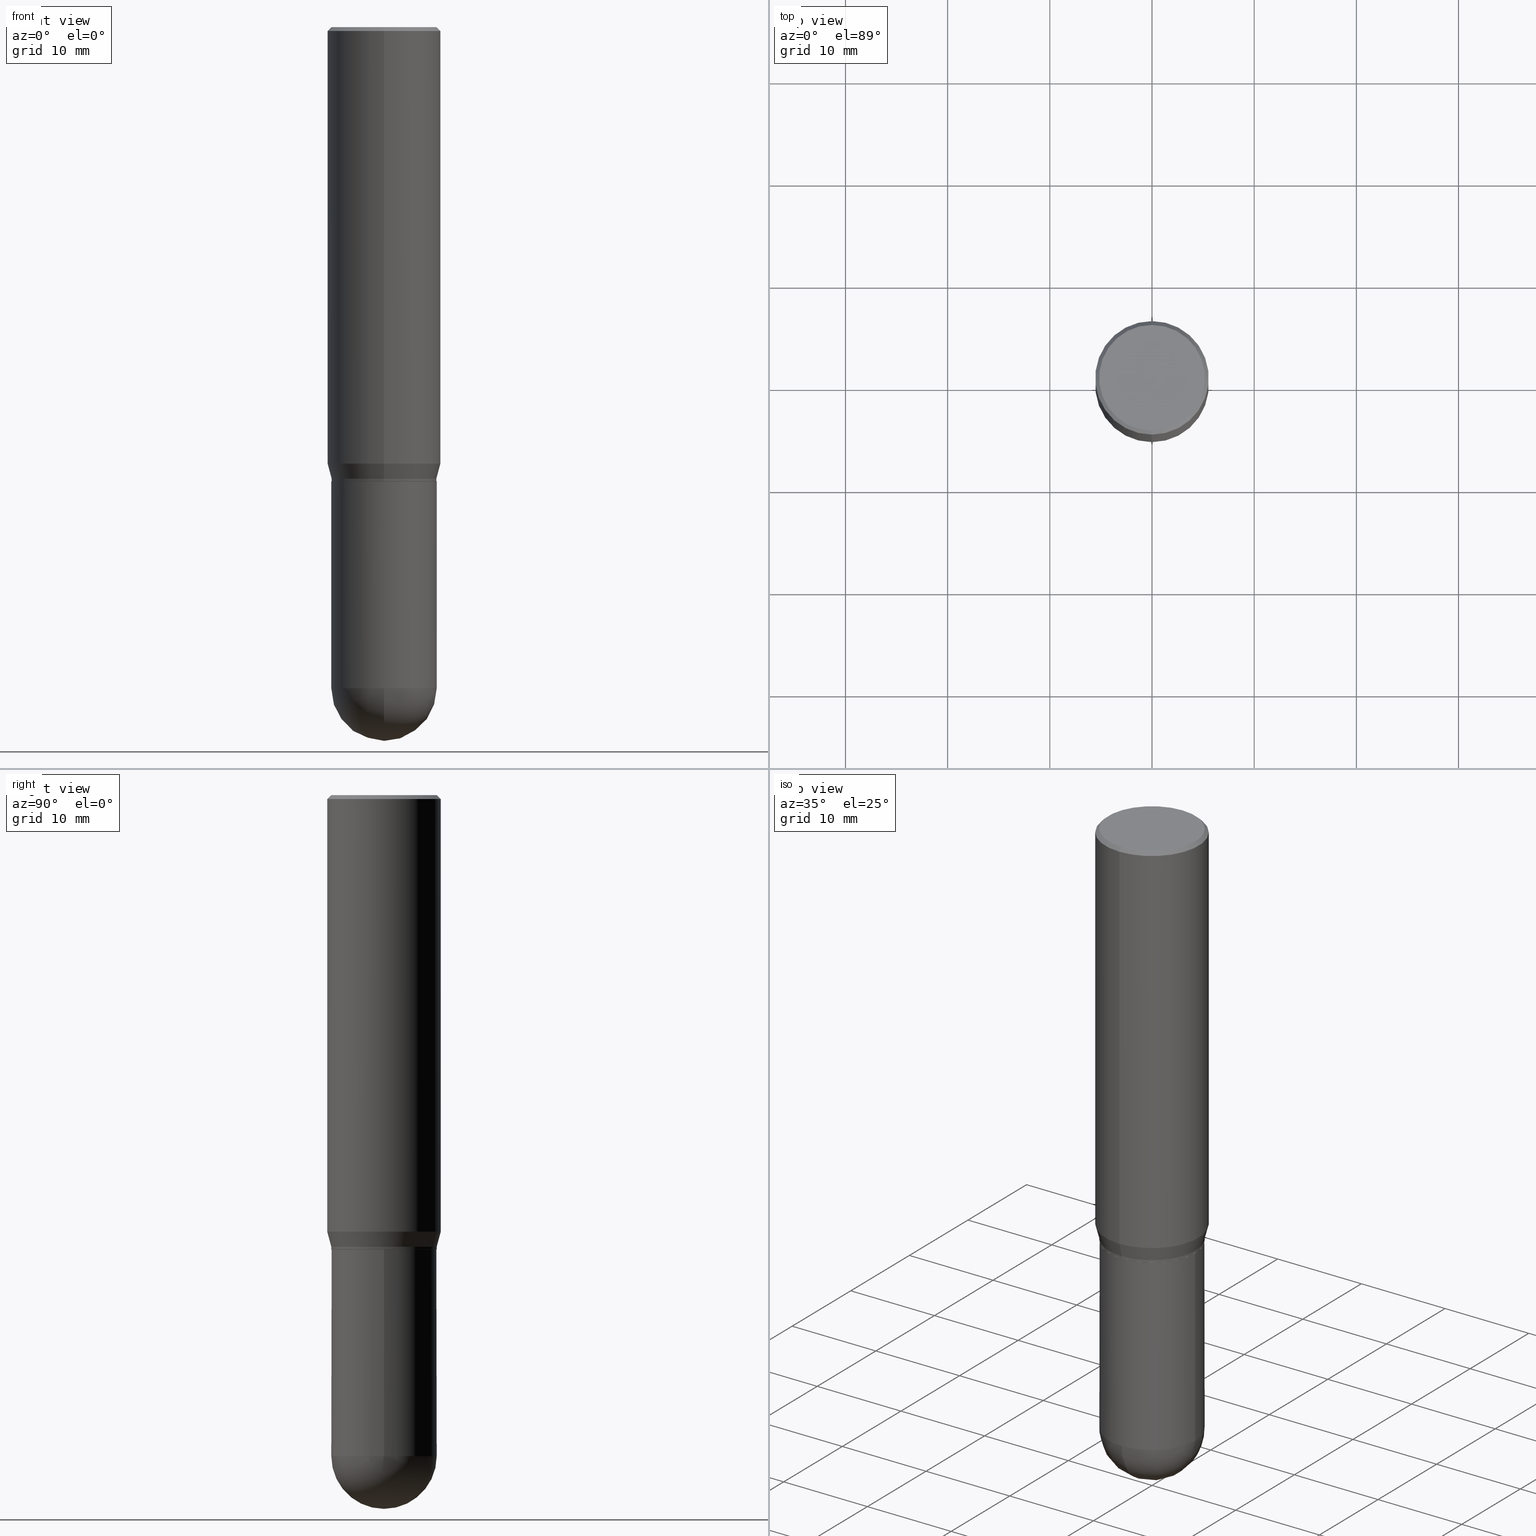
[diagram: canonical four-view strip — front | top / right | iso, engineering-drawing reading convention]
A machine part, canonical four-view strip (front | top / right | iso — engineering-drawing reading convention). The complete STEP part file that produces these views, byte-faithful:
ISO-10303-21;
HEADER;
FILE_DESCRIPTION (( 'STEP AP203' ),
    '1' );
FILE_NAME ('30496.STEP',
    '2024-03-08T15:27:33',
    ( '' ),
    ( '' ),
    'SwSTEP 2.0',
    'SolidWorks 2023',
    '' );
FILE_SCHEMA (( 'CONFIG_CONTROL_DESIGN' ));
ENDSEC;

DATA;
#1 = AXIS2_PLACEMENT_3D ( 'NONE', #465, #270, #302 ) ;
#2 = DATE_AND_TIME ( #236, #352 ) ;
#3 = CARTESIAN_POINT ( 'NONE',  ( -1.527523085743870054E-15, -0.2187500000000000555, -0.01499999999999934892 ) ) ;
#4 = LINE ( 'NONE', #163, #512 ) ;
#5 = FACE_OUTER_BOUND ( 'NONE', #337, .T. ) ;
#6 = CIRCLE ( 'NONE', #76, 0.2031000000000000583 ) ;
#7 = AXIS2_PLACEMENT_3D ( 'NONE', #382, #28, #419 ) ;
#8 = DIRECTION ( 'NONE',  ( 1.000000000000000000, -6.982962677686262766E-15, 0.000000000000000000 ) ) ;
#9 = DIRECTION ( 'NONE',  ( -1.000000000000000000, 7.105427357601001070E-15, -4.926315508542082329E-29 ) ) ;
#10 = EDGE_CURVE ( 'NONE', #110, #345, #64, .T. ) ;
#11 = ORIENTED_EDGE ( 'NONE', *, *, #233, .T. ) ;
#12 = CARTESIAN_POINT ( 'NONE',  ( 1.498712265402032742E-15, 0.2030999999999938688, -1.740000000000000879 ) ) ;
#13 = ORIENTED_EDGE ( 'NONE', *, *, #233, .F. ) ;
#14 = EDGE_CURVE ( 'NONE', #19, #290, #239, .T. ) ;
#15 = AXIS2_PLACEMENT_3D ( 'NONE', #164, #430, #86 ) ;
#16 = LOCAL_TIME ( 10, 27, 33.00000000000000000, #351 ) ;
#17 = LINE ( 'NONE', #60, #87 ) ;
#18 = AXIS2_PLACEMENT_3D ( 'NONE', #216, #94, #489 ) ;
#19 = VERTEX_POINT ( 'NONE', #385 ) ;
#20 = DIRECTION ( 'NONE',  ( 4.937700262164548831E-15, 0.7071067811865452413, -0.7071067811865497932 ) ) ;
#21 = ORIENTED_EDGE ( 'NONE', *, *, #22, .T. ) ;
#22 = EDGE_CURVE ( 'NONE', #95, #147, #75, .T. ) ;
#23 = DIRECTION ( 'NONE',  ( -2.445428866101404443E-29, 3.491538535316298316E-15, 1.000000000000000000 ) ) ;
#24 = ORIENTED_EDGE ( 'NONE', *, *, #272, .T. ) ;
#25 = DIRECTION ( 'NONE',  ( -1.000000000000000000, 6.982962677686265922E-15, -4.876176775795935793E-29 ) ) ;
#26 = VERTEX_POINT ( 'NONE', #509 ) ;
#27 = AXIS2_PLACEMENT_3D ( 'NONE', #70, #31, #72 ) ;
#28 = DIRECTION ( 'NONE',  ( -2.445428866101404443E-29, 3.491538535316298316E-15, 1.000000000000000000 ) ) ;
#29 = VERTEX_POINT ( 'NONE', #159 ) ;
#30 = EDGE_CURVE ( 'NONE', #341, #95, #400, .T. ) ;
#31 = DIRECTION ( 'NONE',  ( 2.445428866101404443E-29, -3.491538535316297921E-15, -1.000000000000000000 ) ) ;
#32 = ORIENTED_EDGE ( 'NONE', *, *, #148, .F. ) ;
#33 = CARTESIAN_POINT ( 'NONE',  ( 6.210996075139691695E-29, -8.917326398390289827E-15, -2.546899999999999942 ) ) ;
#34 = ORIENTED_EDGE ( 'NONE', *, *, #78, .F. ) ;
#35 = CONICAL_SURFACE ( 'NONE', #359, 0.2030999999999999472, 0.2617993877991502960 ) ;
#36 = ORGANIZATION ( 'UNSPECIFIED', 'UNSPECIFIED', '' ) ;
#37 = EDGE_LOOP ( 'NONE', ( #34, #21, #107, #114 ) ) ;
#38 = COORDINATED_UNIVERSAL_TIME_OFFSET ( 5, 0, .BEHIND. ) ;
#39 = DIRECTION ( 'NONE',  ( 2.445428866101404443E-29, -3.491538535316298316E-15, -1.000000000000000000 ) ) ;
#40 = APPROVAL_STATUS ( 'not_yet_approved' ) ;
#41 = DIRECTION ( 'NONE',  ( -6.982962677686266711E-15, -1.000000000000000000, 3.491538535316298710E-15 ) ) ;
#42 = AXIS2_PLACEMENT_3D ( 'NONE', #353, #277, #243 ) ;
#43 = AXIS2_PLACEMENT_3D ( 'NONE', #149, #299, #456 ) ;
#44 = DIRECTION ( 'NONE',  ( -2.445428866101404443E-29, 3.491538535316298316E-15, 1.000000000000000000 ) ) ;
#45 = EDGE_CURVE ( 'NONE', #491, #29, #367, .T. ) ;
#46 = CALENDAR_DATE ( 2024, 8, 3 ) ;
#47 = LINE ( 'NONE', #313, #425 ) ;
#48 = DIRECTION ( 'NONE',  ( 6.982962677686265133E-15, 1.000000000000000000, -3.492862791899308071E-15 ) ) ;
#49 = VECTOR ( 'NONE', #140, 39.37007874015748143 ) ;
#50 = CIRCLE ( 'NONE', #18, 0.2031000000000000028 ) ;
#51 = ADVANCED_FACE ( 'NONE', ( #315 ), #212, .T. ) ;
#52 = FACE_OUTER_BOUND ( 'NONE', #61, .T. ) ;
#53 = ORIENTED_EDGE ( 'NONE', *, *, #131, .T. ) ;
#54 = CARTESIAN_POINT ( 'NONE',  ( 6.210996075139691695E-29, -8.917326398390289827E-15, -2.546899999999999942 ) ) ;
#55 = ORIENTED_EDGE ( 'NONE', *, *, #508, .T. ) ;
#56 = DIRECTION ( 'NONE',  ( 6.982962677686266711E-15, 1.000000000000000000, -2.690150658458162309E-15 ) ) ;
#57 = EDGE_LOOP ( 'NONE', ( #13, #260, #417, #188 ) ) ;
#58 = AXIS2_PLACEMENT_3D ( 'NONE', #321, #480, #119 ) ;
#59 = AXIS2_PLACEMENT_3D ( 'NONE', #62, #362, #331 ) ;
#60 = CARTESIAN_POINT ( 'NONE',  ( 1.527523085743871040E-15, 0.2187499999999999167, -0.01500000000000087721 ) ) ;
#61 = EDGE_LOOP ( 'NONE', ( #500, #328, #189, #71 ) ) ;
#62 = CARTESIAN_POINT ( 'NONE',  ( 4.112217053294172949E-29, -5.871348173807832947E-15, -1.681593404861547070 ) ) ;
#63 = CYLINDRICAL_SURFACE ( 'NONE', #7, 0.2187500000000000000 ) ;
#64 = LINE ( 'NONE', #154, #295 ) ;
#65 = EDGE_CURVE ( 'NONE', #503, #26, #161, .T. ) ;
#66 = DIRECTION ( 'NONE',  ( 1.000000000000000000, -6.982962677686266711E-15, 4.876176775795935793E-29 ) ) ;
#67 = VECTOR ( 'NONE', #127, 39.37007874015748143 ) ;
#68 = ORIENTED_EDGE ( 'NONE', *, *, #265, .F. ) ;
#69 = APPROVAL_PERSON_ORGANIZATION ( #203, #108, #274 ) ;
#70 = CARTESIAN_POINT ( 'NONE',  ( 1.422778645578576487E-15, 0.2037499999999999867, -7.674476811497108312E-16 ) ) ;
#71 = ORIENTED_EDGE ( 'NONE', *, *, #338, .F. ) ;
#72 = DIRECTION ( 'NONE',  ( 6.982962677686265922E-15, 1.000000000000000000, -3.491538535316297921E-15 ) ) ;
#73 = DIRECTION ( 'NONE',  ( -6.982962677686265922E-15, -1.000000000000000000, 4.045184590815789415E-15 ) ) ;
#74 = CARTESIAN_POINT ( 'NONE',  ( 1.418239719838123571E-15, 0.2030999999999938965, -1.750000000000000666 ) ) ;
#75 = LINE ( 'NONE', #232, #144 ) ;
#76 = AXIS2_PLACEMENT_3D ( 'NONE', #206, #360, #8 ) ;
#77 = CONICAL_SURFACE ( 'NONE', #222, 0.2026000000000000023, 0.7853981633974824739 ) ;
#78 = EDGE_CURVE ( 'NONE', #95, #341, #461, .T. ) ;
#79 = APPROVAL_DATE_TIME ( #2, #133 ) ;
#80 = DIRECTION ( 'NONE',  ( 6.982962677686265133E-15, 1.000000000000000000, -3.492862791899308071E-15 ) ) ;
#81 = UNCERTAINTY_MEASURE_WITH_UNIT (LENGTH_MEASURE( 1.000000000000000082E-05 ), #225, 'distance_accuracy_value', 'NONE');
#82 = COORDINATED_UNIVERSAL_TIME_OFFSET ( 5, 0, .BEHIND. ) ;
#83 = DIRECTION ( 'NONE',  ( -6.982962677686265133E-15, -1.000000000000000000, 3.492862791899308071E-15 ) ) ;
#84 = DATE_AND_TIME ( #432, #275 ) ;
#85 = EDGE_CURVE ( 'NONE', #29, #110, #153, .T. ) ;
#86 = DIRECTION ( 'NONE',  ( -6.982962677686265133E-15, -1.000000000000000000, 3.491538535316298316E-15 ) ) ;
#87 = VECTOR ( 'NONE', #20, 39.37007874015748143 ) ;
#88 = CARTESIAN_POINT ( 'NONE',  ( 1.554312234475260177E-15, 0.2187499999999941436, -1.681593404861547958 ) ) ;
#89 = PRODUCT_RELATED_PRODUCT_CATEGORY ( 'detail', '', ( #155 ) ) ;
#90 = DIRECTION ( 'NONE',  ( -6.982962677686266711E-15, -1.000000000000000000, 4.035225987687243463E-15 ) ) ;
#91 = CARTESIAN_POINT ( 'NONE',  ( 0.000000000000000000, 0.000000000000000000, 0.000000000000000000 ) ) ;
#92 = CC_DESIGN_PERSON_AND_ORGANIZATION_ASSIGNMENT ( #507, #397, ( #474 ) ) ;
#93 = CC_DESIGN_SECURITY_CLASSIFICATION ( #121, ( #304 ) ) ;
#94 = DIRECTION ( 'NONE',  ( -2.445468806185136597E-29, 3.491481338843145583E-15, 1.000000000000000000 ) ) ;
#95 = VERTEX_POINT ( 'NONE', #126 ) ;
#96 = DIRECTION ( 'NONE',  ( -1.000000000000000000, 6.982962677686266711E-15, -4.883557194083112901E-29 ) ) ;
#97 = CARTESIAN_POINT ( 'NONE',  ( -0.2031000000000000028, -6.058160786108792588E-15, -1.750000000000000000 ) ) ;
#98 = ADVANCED_FACE ( 'NONE', ( #477 ), #35, .T. ) ;
#99 = CIRCLE ( 'NONE', #273, 0.2031000000000000583 ) ;
#100 = VECTOR ( 'NONE', #445, 39.37007874015748143 ) ;
#101 = CARTESIAN_POINT ( 'NONE',  ( 0.000000000000000000, 0.000000000000000000, 0.000000000000000000 ) ) ;
#102 = ORIENTED_EDGE ( 'NONE', *, *, #209, .F. ) ;
#103 = PLANE ( 'NONE',  #27 ) ;
#104 = ORIENTED_EDGE ( 'NONE', *, *, #65, .F. ) ;
#105 = ADVANCED_FACE ( 'NONE', ( #437 ), #279, .T. ) ;
#106 = DIRECTION ( 'NONE',  ( -1.000000000000000000, 6.982962677686266711E-15, -4.883557194083112901E-29 ) ) ;
#107 = ORIENTED_EDGE ( 'NONE', *, *, #124, .T. ) ;
#108 = APPROVAL ( #194, 'UNSPECIFIED' ) ;
#109 = CARTESIAN_POINT ( 'NONE',  ( 4.279500515677457004E-29, -6.110192436803521757E-15, -1.750000000000000000 ) ) ;
#110 = VERTEX_POINT ( 'NONE', #396 ) ;
#111 = AXIS2_PLACEMENT_3D ( 'NONE', #223, #496, #463 ) ;
#112 = DESIGN_CONTEXT ( 'detailed design', #492, 'design' ) ;
#113 = DIRECTION ( 'NONE',  ( -6.982962677686266711E-15, -1.000000000000000000, 4.035225987687243463E-15 ) ) ;
#114 = ORIENTED_EDGE ( 'NONE', *, *, #370, .F. ) ;
#115 = FACE_OUTER_BOUND ( 'NONE', #253, .T. ) ;
#116 = ORIENTED_EDGE ( 'NONE', *, *, #14, .T. ) ;
#117 = EDGE_CURVE ( 'NONE', #347, #147, #350, .T. ) ;
#118 = PERSON_AND_ORGANIZATION ( #374, #36 ) ;
#119 = DIRECTION ( 'NONE',  ( -6.982962677686265922E-15, -1.000000000000000000, 3.491538535316297921E-15 ) ) ;
#120 = CIRCLE ( 'NONE', #199, 0.2030999999999999472 ) ;
#121 = SECURITY_CLASSIFICATION ( '', '', #314 ) ;
#122 =( NAMED_UNIT ( * ) SI_UNIT ( $, .STERADIAN. ) SOLID_ANGLE_UNIT ( ) );
#123 = CARTESIAN_POINT ( 'NONE',  ( 0.000000000000000000, 0.000000000000000000, 0.000000000000000000 ) ) ;
#124 = EDGE_CURVE ( 'NONE', #147, #347, #320, .T. ) ;
#125 = COORDINATED_UNIVERSAL_TIME_OFFSET ( 5, 0, .BEHIND. ) ;
#126 = CARTESIAN_POINT ( 'NONE',  ( -1.449280202029235538E-15, -0.2037499999999999867, 5.993075674126653216E-16 ) ) ;
#127 = DIRECTION ( 'NONE',  ( -2.445428866101404162E-29, 3.491538535316297921E-15, 1.000000000000000000 ) ) ;
#128 = AXIS2_PLACEMENT_3D ( 'NONE', #157, #307, #113 ) ;
#129 = CALENDAR_DATE ( 2024, 8, 3 ) ;
#130 = CARTESIAN_POINT ( 'NONE',  ( 4.255046227016444789E-29, -6.075277051450358762E-15, -1.739999999999999991 ) ) ;
#131 = EDGE_CURVE ( 'NONE', #158, #375, #99, .T. ) ;
#132 = CARTESIAN_POINT ( 'NONE',  ( 1.475150865661223764E-15, 0.2037499999999999867, -8.234943857287259354E-16 ) ) ;
#133 = APPROVAL ( #40, 'UNSPECIFIED' ) ;
#134 = DIRECTION ( 'NONE',  ( -2.445428866101404162E-29, 3.491538535316297921E-15, 1.000000000000000000 ) ) ;
#135 = VERTEX_POINT ( 'NONE', #88 ) ;
#136 = AXIS2_PLACEMENT_3D ( 'NONE', #436, #245, #356 ) ;
#137 = CARTESIAN_POINT ( 'NONE',  ( 6.210996075139691695E-29, -8.917326398390289827E-15, -2.546899999999999942 ) ) ;
#138 = ORIENTED_EDGE ( 'NONE', *, *, #440, .F. ) ;
#139 = ADVANCED_BREP_SHAPE_REPRESENTATION ( '30496', ( #498, #166, #136 ), #258 ) ;
#140 = DIRECTION ( 'NONE',  ( 1.839019923739601104E-15, 0.2588190451025250693, 0.9659258262890670910 ) ) ;
#141 = ORIENTED_EDGE ( 'NONE', *, *, #22, .F. ) ;
#142 = CARTESIAN_POINT ( 'NONE',  ( 0.2031000000000000583, -8.919512802275635677E-15, -2.546899999999999942 ) ) ;
#143 = VERTEX_POINT ( 'NONE', #197 ) ;
#144 = VECTOR ( 'NONE', #389, 39.37007874015748143 ) ;
#145 = AXIS2_PLACEMENT_3D ( 'NONE', #74, #146, #25 ) ;
#146 = DIRECTION ( 'NONE',  ( 2.438088387897960049E-29, -3.491481338843145188E-15, -1.000000000000000000 ) ) ;
#147 = VERTEX_POINT ( 'NONE', #3 ) ;
#148 = EDGE_CURVE ( 'NONE', #19, #503, #4, .T. ) ;
#149 = CARTESIAN_POINT ( 'NONE',  ( 4.278277801244407626E-29, -6.108446667535864278E-15, -1.749500000000000055 ) ) ;
#150 = ORIENTED_EDGE ( 'NONE', *, *, #301, .F. ) ;
#151 = SPHERICAL_SURFACE ( 'NONE', #335, 0.2030999999999999472 ) ;
#152 = ORIENTED_EDGE ( 'NONE', *, *, #470, .F. ) ;
#153 = CIRCLE ( 'NONE', #42, 0.2031000000000000583 ) ;
#154 = CARTESIAN_POINT ( 'NONE',  ( -0.2031000000000000028, 1.443112296328763497E-15, -9.990357168307714203E-30 ) ) ;
#155 = PRODUCT ( '30496', '30496', '', ( #429 ) ) ;
#156 = EDGE_CURVE ( 'NONE', #290, #143, #47, .T. ) ;
#157 = CARTESIAN_POINT ( 'NONE',  ( 4.255046227016444789E-29, -6.075277051450358762E-15, -1.739999999999999991 ) ) ;
#158 = VERTEX_POINT ( 'NONE', #349 ) ;
#159 = CARTESIAN_POINT ( 'NONE',  ( 1.418239719838142898E-15, 0.2030999999999910932, -2.546900000000000830 ) ) ;
#160 = APPROVAL_ROLE ( '' ) ;
#161 = LINE ( 'NONE', #433, #67 ) ;
#162 = PERSON_AND_ORGANIZATION ( #374, #36 ) ;
#163 = CARTESIAN_POINT ( 'NONE',  ( -1.414748238499194972E-15, -0.2026000000000061363, -1.749999999999999112 ) ) ;
#164 = CARTESIAN_POINT ( 'NONE',  ( 2.741164584547628974E-45, -3.913784576302397328E-31, -1.120934091580303315E-16 ) ) ;
#165 = PERSON_AND_ORGANIZATION ( #374, #36 ) ;
#166 = MANIFOLD_SOLID_BREP ( 'Body-Move/Copy2[2]', #460 ) ;
#167 = PLANE ( 'NONE',  #58 ) ;
#168 = AXIS2_PLACEMENT_3D ( 'NONE', #137, #96, #56 ) ;
#169 = LINE ( 'NONE', #276, #49 ) ;
#170 = LINE ( 'NONE', #210, #471 ) ;
#171 = ORIENTED_EDGE ( 'NONE', *, *, #455, .F. ) ;
#172 = DIRECTION ( 'NONE',  ( -6.982962677686265133E-15, -1.000000000000000000, 3.491538535316298316E-15 ) ) ;
#173 = ADVANCED_FACE ( 'NONE', ( #5 ), #167, .F. ) ;
#174 = AXIS2_PLACEMENT_3D ( 'NONE', #394, #39, #80 ) ;
#175 = CIRCLE ( 'NONE', #184, 0.2030999999999999472 ) ;
#176 = CARTESIAN_POINT ( 'NONE',  ( 4.279500515677457004E-29, -6.110192436803521757E-15, -1.750000000000000000 ) ) ;
#177 = ORIENTED_EDGE ( 'NONE', *, *, #508, .F. ) ;
#178 = CC_DESIGN_PERSON_AND_ORGANIZATION_ASSIGNMENT ( #319, #192, ( #304 ) ) ;
#179 = CYLINDRICAL_SURFACE ( 'NONE', #418, 0.2030999999999999472 ) ;
#180 = EDGE_LOOP ( 'NONE', ( #211, #11, #443, #407 ) ) ;
#181 = EDGE_CURVE ( 'NONE', #26, #215, #342, .T. ) ;
#182 = ORIENTED_EDGE ( 'NONE', *, *, #209, .T. ) ;
#183 = CONICAL_SURFACE ( 'NONE', #378, 0.2030999999999999472, 0.2617993877991502960 ) ;
#184 = AXIS2_PLACEMENT_3D ( 'NONE', #334, #376, #493 ) ;
#185 = FACE_OUTER_BOUND ( 'NONE', #497, .T. ) ;
#186 = ADVANCED_FACE ( 'NONE', ( #235 ), #450, .T. ) ;
#187 = ORIENTED_EDGE ( 'NONE', *, *, #156, .F. ) ;
#188 = ORIENTED_EDGE ( 'NONE', *, *, #117, .F. ) ;
#189 = ORIENTED_EDGE ( 'NONE', *, *, #393, .T. ) ;
#190 = CYLINDRICAL_SURFACE ( 'NONE', #1, 0.2031000000000000028 ) ;
#191 = EDGE_LOOP ( 'NONE', ( #405, #368, #68, #363 ) ) ;
#192 = PERSON_AND_ORGANIZATION_ROLE ( 'design_supplier' ) ;
#193 = ORIENTED_EDGE ( 'NONE', *, *, #195, .F. ) ;
#194 = APPROVAL_STATUS ( 'not_yet_approved' ) ;
#195 = EDGE_CURVE ( 'NONE', #375, #29, #6, .T. ) ;
#196 = CARTESIAN_POINT ( 'NONE',  ( 6.228364502472924746E-29, -8.892453821899607499E-15, -2.546899999999999942 ) ) ;
#197 = CARTESIAN_POINT ( 'NONE',  ( 1.443112296328806293E-15, 0.2030999999999939243, -1.749500000000000721 ) ) ;
#198 = APPROVAL ( #354, 'UNSPECIFIED' ) ;
#199 = AXIS2_PLACEMENT_3D ( 'NONE', #54, #9, #255 ) ;
#200 = PRODUCT_DEFINITION_SHAPE ( 'NONE', 'NONE',  #474 ) ;
#201 = PERSON_AND_ORGANIZATION_ROLE ( 'design_owner' ) ;
#202 = DIRECTION ( 'NONE',  ( -2.445428866101404443E-29, 3.491538535316298316E-15, 1.000000000000000000 ) ) ;
#203 = PERSON_AND_ORGANIZATION ( #374, #36 ) ;
#204 = DIRECTION ( 'NONE',  ( 5.024295867788231995E-15, 0.7071067811865739960, 0.7071067811865208164 ) ) ;
#205 = EDGE_CURVE ( 'NONE', #215, #135, #169, .T. ) ;
#206 = CARTESIAN_POINT ( 'NONE',  ( 6.228364502472924746E-29, -8.892453821899607499E-15, -2.546899999999999942 ) ) ;
#207 = CARTESIAN_POINT ( 'NONE',  ( 4.255046227016444789E-29, -6.075277051450358762E-15, -1.739999999999999991 ) ) ;
#208 = CYLINDRICAL_SURFACE ( 'NONE', #288, 0.2187500000000000000 ) ;
#209 = EDGE_CURVE ( 'NONE', #491, #158, #120, .T. ) ;
#210 = CARTESIAN_POINT ( 'NONE',  ( 1.554312234475218762E-15, 0.2187500000000000000, -7.637740546004402196E-16 ) ) ;
#211 = ORIENTED_EDGE ( 'NONE', *, *, #265, .T. ) ;
#212 = CONICAL_SURFACE ( 'NONE', #174, 0.2187500000000000000, 0.7853981633974485010 ) ;
#213 = CIRCLE ( 'NONE', #111, 0.2031000000000000028 ) ;
#214 = DIRECTION ( 'NONE',  ( -2.445428866101404162E-29, 3.491538535316297921E-15, 1.000000000000000000 ) ) ;
#215 = VERTEX_POINT ( 'NONE', #12 ) ;
#216 = CARTESIAN_POINT ( 'NONE',  ( 4.279570410823988484E-29, -6.110092342975504671E-15, -1.750000000000000000 ) ) ;
#217 = EDGE_LOOP ( 'NONE', ( #412, #300, #150, #152, #228 ) ) ;
#218 = ADVANCED_FACE ( 'NONE', ( #52 ), #183, .T. ) ;
#219 = FACE_OUTER_BOUND ( 'NONE', #217, .T. ) ;
#220 = ORIENTED_EDGE ( 'NONE', *, *, #444, .T. ) ;
#221 = AXIS2_PLACEMENT_3D ( 'NONE', #464, #422, #73 ) ;
#222 = AXIS2_PLACEMENT_3D ( 'NONE', #176, #292, #247 ) ;
#223 = CARTESIAN_POINT ( 'NONE',  ( 4.279570410823988484E-29, -6.110092342975504671E-15, -1.750000000000000000 ) ) ;
#224 = EDGE_LOOP ( 'NONE', ( #325, #220 ) ) ;
#225 =( CONVERSION_BASED_UNIT ( 'INCH', #458 ) LENGTH_UNIT ( ) NAMED_UNIT ( #254 ) );
#226 = ORIENTED_EDGE ( 'NONE', *, *, #45, .F. ) ;
#227 = DIRECTION ( 'NONE',  ( -2.445428866101404443E-29, 3.491538535316298316E-15, 1.000000000000000000 ) ) ;
#228 = ORIENTED_EDGE ( 'NONE', *, *, #195, .T. ) ;
#229 = AXIS2_PLACEMENT_3D ( 'NONE', #246, #399, #48 ) ;
#230 = DIRECTION ( 'NONE',  ( 1.000000000000000000, -6.982962677686262766E-15, 0.000000000000000000 ) ) ;
#231 = CIRCLE ( 'NONE', #343, 0.2187500000000000000 ) ;
#232 = CARTESIAN_POINT ( 'NONE',  ( -1.500733937012521740E-15, -0.2187500000000000555, -0.01499999999999934892 ) ) ;
#233 = EDGE_CURVE ( 'NONE', #135, #347, #170, .T. ) ;
#234 = PERSON_AND_ORGANIZATION ( #374, #36 ) ;
#235 = FACE_OUTER_BOUND ( 'NONE', #37, .T. ) ;
#236 = CALENDAR_DATE ( 2024, 8, 3 ) ;
#237 = DIRECTION ( 'NONE',  ( -2.445428866101404443E-29, 3.491538535316298316E-15, 1.000000000000000000 ) ) ;
#238 = APPROVAL_DATE_TIME ( #84, #198 ) ;
#239 = CIRCLE ( 'NONE', #221, 0.2026000000000000023 ) ;
#240 = DIRECTION ( 'NONE',  ( -2.445428866101404443E-29, 3.491538535316298316E-15, 1.000000000000000000 ) ) ;
#241 = APPROVAL_PERSON_ORGANIZATION ( #162, #198, #390 ) ;
#242 = CALENDAR_DATE ( 2024, 8, 3 ) ;
#243 = DIRECTION ( 'NONE',  ( 1.000000000000000000, -6.982962677686262766E-15, 0.000000000000000000 ) ) ;
#244 = ADVANCED_FACE ( 'NONE', ( #490 ), #179, .T. ) ;
#245 = DIRECTION ( 'NONE',  ( 0.000000000000000000, 0.000000000000000000, 1.000000000000000000 ) ) ;
#246 = CARTESIAN_POINT ( 'NONE',  ( 3.668143299152134304E-31, -5.237307802974486843E-17, -0.01500000000000011394 ) ) ;
#247 = DIRECTION ( 'NONE',  ( -6.982962677686265922E-15, -1.000000000000000000, 4.045184590815789415E-15 ) ) ;
#248 = EDGE_LOOP ( 'NONE', ( #116, #271, #138, #32 ) ) ;
#249 = LOCAL_TIME ( 10, 27, 33.00000000000000000, #82 ) ;
#250 = ADVANCED_FACE ( 'NONE', ( #291 ), #264, .T. ) ;
#251 = DIRECTION ( 'NONE',  ( -2.445428866101404443E-29, 3.491538535316298316E-15, 1.000000000000000000 ) ) ;
#252 = CC_DESIGN_DATE_AND_TIME_ASSIGNMENT ( #311, #346, ( #121 ) ) ;
#253 = EDGE_LOOP ( 'NONE', ( #409, #310 ) ) ;
#254 = DIMENSIONAL_EXPONENTS ( 1.000000000000000000, 0.000000000000000000, 0.000000000000000000, 0.000000000000000000, 0.000000000000000000, 0.000000000000000000, 0.000000000000000000 ) ;
#255 = DIRECTION ( 'NONE',  ( -7.105427357601001070E-15, -1.000000000000000000, 0.000000000000000000 ) ) ;
#256 = ORIENTED_EDGE ( 'NONE', *, *, #45, .T. ) ;
#257 = AXIS2_PLACEMENT_3D ( 'NONE', #469, #202, #83 ) ;
#258 =( GEOMETRIC_REPRESENTATION_CONTEXT ( 3 ) GLOBAL_UNCERTAINTY_ASSIGNED_CONTEXT ( ( #81 ) ) GLOBAL_UNIT_ASSIGNED_CONTEXT ( ( #225, #305, #122 ) ) REPRESENTATION_CONTEXT ( 'NONE', 'WORKASPACE' ) );
#259 = CARTESIAN_POINT ( 'NONE',  ( -1.418239719838037782E-15, -0.2031000000000060257, -1.739999999999999103 ) ) ;
#260 = ORIENTED_EDGE ( 'NONE', *, *, #338, .T. ) ;
#261 = DIRECTION ( 'NONE',  ( -2.445468806185136597E-29, 3.491481338843145583E-15, 1.000000000000000000 ) ) ;
#262 = CARTESIAN_POINT ( 'NONE',  ( 2.741164584547628974E-45, -3.913784576302397328E-31, -1.120934091580303315E-16 ) ) ;
#263 = ORIENTED_EDGE ( 'NONE', *, *, #494, .F. ) ;
#264 = CONICAL_SURFACE ( 'NONE', #329, 0.2026000000000000023, 0.7853981633974824739 ) ;
#265 = EDGE_CURVE ( 'NONE', #286, #135, #485, .T. ) ;
#266 = CARTESIAN_POINT ( 'NONE',  ( 6.716355003342508555E-29, -9.614009970063991023E-15, -2.750000000000000000 ) ) ;
#267 = VERTEX_POINT ( 'NONE', #482 ) ;
#268 = DIRECTION ( 'NONE',  ( -2.445468806185136877E-29, 3.491481338843145188E-15, 1.000000000000000000 ) ) ;
#269 = EDGE_LOOP ( 'NONE', ( #226, #182, #263, #451 ) ) ;
#270 = DIRECTION ( 'NONE',  ( -2.445468806185136597E-29, 3.491481338843145583E-15, 1.000000000000000000 ) ) ;
#271 = ORIENTED_EDGE ( 'NONE', *, *, #156, .T. ) ;
#272 = EDGE_CURVE ( 'NONE', #143, #215, #449, .T. ) ;
#273 = AXIS2_PLACEMENT_3D ( 'NONE', #196, #473, #357 ) ;
#274 = APPROVAL_ROLE ( '' ) ;
#275 = LOCAL_TIME ( 10, 27, 33.00000000000000000, #278 ) ;
#276 = CARTESIAN_POINT ( 'NONE',  ( 1.443112296328805307E-15, 0.2030999999999938688, -1.740000000000000879 ) ) ;
#277 = DIRECTION ( 'NONE',  ( -2.445468806185136597E-29, 3.491481338843145583E-15, 1.000000000000000000 ) ) ;
#278 = COORDINATED_UNIVERSAL_TIME_OFFSET ( 5, 0, .BEHIND. ) ;
#279 = CYLINDRICAL_SURFACE ( 'NONE', #504, 0.2030999999999999472 ) ;
#280 = DIRECTION ( 'NONE',  ( -6.982962677686265133E-15, -1.000000000000000000, 3.492862791899308071E-15 ) ) ;
#281 = CIRCLE ( 'NONE', #472, 0.2031000000000000583 ) ;
#282 = APPLICATION_PROTOCOL_DEFINITION ( 'international standard', 'config_control_design', 1994, #467 ) ;
#283 = DIRECTION ( 'NONE',  ( -2.445428866101404443E-29, 3.491538535316298316E-15, 1.000000000000000000 ) ) ;
#284 = CARTESIAN_POINT ( 'NONE',  ( 1.554312234475260375E-15, 0.2187499999999999167, -0.01500000000000087721 ) ) ;
#285 = CARTESIAN_POINT ( 'NONE',  ( -1.527523085743829428E-15, -0.2187500000000058287, -1.681593404861546404 ) ) ;
#286 = VERTEX_POINT ( 'NONE', #285 ) ;
#287 = AXIS2_PLACEMENT_3D ( 'NONE', #476, #318, #439 ) ;
#288 = AXIS2_PLACEMENT_3D ( 'NONE', #91, #364, #172 ) ;
#289 = DIRECTION ( 'NONE',  ( -6.982962677686266711E-15, -1.000000000000000000, 3.491538535316298710E-15 ) ) ;
#290 = VERTEX_POINT ( 'NONE', #442 ) ;
#291 = FACE_OUTER_BOUND ( 'NONE', #248, .T. ) ;
#292 = DIRECTION ( 'NONE',  ( -2.445428866101404443E-29, 3.491538535316298316E-15, 1.000000000000000000 ) ) ;
#293 = EDGE_CURVE ( 'NONE', #286, #147, #366, .T. ) ;
#294 = ORIENTED_EDGE ( 'NONE', *, *, #148, .T. ) ;
#295 = VECTOR ( 'NONE', #424, 39.37007874015748143 ) ;
#296 = CIRCLE ( 'NONE', #43, 0.2030999999999999472 ) ;
#297 = DIRECTION ( 'NONE',  ( 6.982962677686266711E-15, 1.000000000000000000, -2.690150658458162309E-15 ) ) ;
#298 = ORIENTED_EDGE ( 'NONE', *, *, #10, .F. ) ;
#299 = DIRECTION ( 'NONE',  ( -2.445428866101404443E-29, 3.491538535316298316E-15, 1.000000000000000000 ) ) ;
#300 = ORIENTED_EDGE ( 'NONE', *, *, #10, .T. ) ;
#301 = EDGE_CURVE ( 'NONE', #267, #345, #50, .T. ) ;
#302 = DIRECTION ( 'NONE',  ( 1.000000000000000000, -6.982962677686266711E-15, 4.876176775795935793E-29 ) ) ;
#303 = ORIENTED_EDGE ( 'NONE', *, *, #65, .T. ) ;
#304 = PRODUCT_DEFINITION_FORMATION_WITH_SPECIFIED_SOURCE ( 'ANY', '', #155, .NOT_KNOWN. ) ;
#305 =( NAMED_UNIT ( * ) PLANE_ANGLE_UNIT ( ) SI_UNIT ( $, .RADIAN. ) );
#306 = ORIENTED_EDGE ( 'NONE', *, *, #470, .T. ) ;
#307 = DIRECTION ( 'NONE',  ( -2.445428866101404443E-29, 3.491538535316298316E-15, 1.000000000000000000 ) ) ;
#308 = EDGE_LOOP ( 'NONE', ( #298, #339, #53, #306, #420 ) ) ;
#309 = DATE_AND_TIME ( #242, #322 ) ;
#310 = ORIENTED_EDGE ( 'NONE', *, *, #78, .T. ) ;
#311 = DATE_AND_TIME ( #129, #16 ) ;
#312 = CC_DESIGN_APPROVAL ( #198, ( #121 ) ) ;
#313 = CARTESIAN_POINT ( 'NONE',  ( 1.439559582650005591E-15, 0.2025999999999938961, -1.750000000000000666 ) ) ;
#314 = SECURITY_CLASSIFICATION_LEVEL ( 'unclassified' ) ;
#315 = FACE_OUTER_BOUND ( 'NONE', #403, .T. ) ;
#316 = ADVANCED_FACE ( 'NONE', ( #447 ), #208, .T. ) ;
#317 = PERSON_AND_ORGANIZATION_ROLE ( 'classification_officer' ) ;
#318 = DIRECTION ( 'NONE',  ( 1.000000000000000000, -6.982962677686265922E-15, 4.883557194083112340E-29 ) ) ;
#319 = PERSON_AND_ORGANIZATION ( #374, #36 ) ;
#320 = CIRCLE ( 'NONE', #434, 0.2187500000000000000 ) ;
#321 = CARTESIAN_POINT ( 'NONE',  ( 4.279500515677457004E-29, -6.110192436803521757E-15, -1.750000000000000000 ) ) ;
#322 = LOCAL_TIME ( 10, 27, 33.00000000000000000, #38 ) ;
#323 = DIRECTION ( 'NONE',  ( -2.445428866101404443E-29, 3.491538535316298316E-15, 1.000000000000000000 ) ) ;
#324 = DIRECTION ( 'NONE',  ( -6.982962677686265922E-15, -1.000000000000000000, 4.045184590815789415E-15 ) ) ;
#325 = ORIENTED_EDGE ( 'NONE', *, *, #301, .T. ) ;
#326 = CC_DESIGN_PERSON_AND_ORGANIZATION_ASSIGNMENT ( #165, #317, ( #121 ) ) ;
#327 = FACE_OUTER_BOUND ( 'NONE', #269, .T. ) ;
#328 = ORIENTED_EDGE ( 'NONE', *, *, #455, .T. ) ;
#329 = AXIS2_PLACEMENT_3D ( 'NONE', #401, #23, #324 ) ;
#330 = AXIS2_PLACEMENT_3D ( 'NONE', #388, #505, #66 ) ;
#331 = DIRECTION ( 'NONE',  ( -6.982962677686265133E-15, -1.000000000000000000, 3.746534391310989557E-15 ) ) ;
#332 = ADVANCED_FACE ( 'NONE', ( #327 ), #486, .T. ) ;
#333 = LINE ( 'NONE', #259, #435 ) ;
#334 = CARTESIAN_POINT ( 'NONE',  ( 4.278277801244407626E-29, -6.108446667535864278E-15, -1.749500000000000055 ) ) ;
#335 = AXIS2_PLACEMENT_3D ( 'NONE', #33, #106, #297 ) ;
#336 = CARTESIAN_POINT ( 'NONE',  ( -1.418239719838036796E-15, -0.2031000000000059424, -1.749499999999999167 ) ) ;
#337 = EDGE_LOOP ( 'NONE', ( #506, #457 ) ) ;
#338 = EDGE_CURVE ( 'NONE', #135, #286, #231, .T. ) ;
#339 = ORIENTED_EDGE ( 'NONE', *, *, #494, .T. ) ;
#340 = CC_DESIGN_DATE_AND_TIME_ASSIGNMENT ( #392, #426, ( #474 ) ) ;
#341 = VERTEX_POINT ( 'NONE', #132 ) ;
#342 = CIRCLE ( 'NONE', #386, 0.2030999999999999472 ) ;
#343 = AXIS2_PLACEMENT_3D ( 'NONE', #373, #323, #481 ) ;
#344 = FACE_OUTER_BOUND ( 'NONE', #308, .T. ) ;
#345 = VERTEX_POINT ( 'NONE', #97 ) ;
#346 = DATE_TIME_ROLE ( 'classification_date' ) ;
#347 = VERTEX_POINT ( 'NONE', #284 ) ;
#348 = APPLICATION_PROTOCOL_DEFINITION ( 'international standard', 'config_control_design', 1994, #492 ) ;
#349 = CARTESIAN_POINT ( 'NONE',  ( -1.443112296328700980E-15, -0.2031000000000088845, -2.546899999999999498 ) ) ;
#350 = CIRCLE ( 'NONE', #257, 0.2187500000000000000 ) ;
#351 = COORDINATED_UNIVERSAL_TIME_OFFSET ( 5, 0, .BEHIND. ) ;
#352 = LOCAL_TIME ( 10, 27, 33.00000000000000000, #125 ) ;
#353 = CARTESIAN_POINT ( 'NONE',  ( 6.228364502472924746E-29, -8.892453821899607499E-15, -2.546899999999999942 ) ) ;
#354 = APPROVAL_STATUS ( 'not_yet_approved' ) ;
#355 = DIRECTION ( 'NONE',  ( -6.982962677686265133E-15, -1.000000000000000000, 3.491538535316298316E-15 ) ) ;
#356 = DIRECTION ( 'NONE',  ( 1.000000000000000000, 0.000000000000000000, 0.000000000000000000 ) ) ;
#357 = DIRECTION ( 'NONE',  ( 1.000000000000000000, -6.982962677686262766E-15, 0.000000000000000000 ) ) ;
#358 = ADVANCED_FACE ( 'NONE', ( #408 ), #77, .T. ) ;
#359 = AXIS2_PLACEMENT_3D ( 'NONE', #511, #240, #427 ) ;
#360 = DIRECTION ( 'NONE',  ( -2.445468806185136597E-29, 3.491481338843145583E-15, 1.000000000000000000 ) ) ;
#361 = CC_DESIGN_PERSON_AND_ORGANIZATION_ASSIGNMENT ( #234, #475, ( #304 ) ) ;
#362 = DIRECTION ( 'NONE',  ( -2.445428866101404443E-29, 3.491538535316298316E-15, 1.000000000000000000 ) ) ;
#363 = ORIENTED_EDGE ( 'NONE', *, *, #393, .F. ) ;
#364 = DIRECTION ( 'NONE',  ( -2.445428866101404443E-29, 3.491538535316298316E-15, 1.000000000000000000 ) ) ;
#365 = ORIENTED_EDGE ( 'NONE', *, *, #370, .T. ) ;
#366 = LINE ( 'NONE', #406, #100 ) ;
#367 = CIRCLE ( 'NONE', #287, 0.2030999999999999472 ) ;
#368 = ORIENTED_EDGE ( 'NONE', *, *, #205, .T. ) ;
#369 = CIRCLE ( 'NONE', #410, 0.2026000000000000023 ) ;
#370 = EDGE_CURVE ( 'NONE', #341, #347, #17, .T. ) ;
#371 = CARTESIAN_POINT ( 'NONE',  ( 1.443112296328762905E-15, 0.2030999999999999472, -7.091314765227400575E-16 ) ) ;
#372 = ORIENTED_EDGE ( 'NONE', *, *, #181, .F. ) ;
#373 = CARTESIAN_POINT ( 'NONE',  ( 4.112217053294172949E-29, -5.871348173807832947E-15, -1.681593404861547070 ) ) ;
#374 = PERSON ( 'UNSPECIFIED', 'UNSPECIFIED', 'UNSPECIFIED', ('UNSPECIFIED'), ('UNSPECIFIED'), ('UNSPECIFIED') ) ;
#375 = VERTEX_POINT ( 'NONE', #142 ) ;
#376 = DIRECTION ( 'NONE',  ( -2.445428866101404443E-29, 3.491538535316298316E-15, 1.000000000000000000 ) ) ;
#377 = EDGE_LOOP ( 'NONE', ( #448, #55, #303, #171 ) ) ;
#378 = AXIS2_PLACEMENT_3D ( 'NONE', #207, #251, #404 ) ;
#379 = VECTOR ( 'NONE', #134, 39.37007874015748143 ) ;
#380 =( LENGTH_UNIT ( ) NAMED_UNIT ( * ) SI_UNIT ( $, .METRE. ) );
#381 = ORIENTED_EDGE ( 'NONE', *, *, #440, .T. ) ;
#382 = CARTESIAN_POINT ( 'NONE',  ( 0.000000000000000000, 0.000000000000000000, 0.000000000000000000 ) ) ;
#383 = ORIENTED_EDGE ( 'NONE', *, *, #484, .T. ) ;
#384 = CARTESIAN_POINT ( 'NONE',  ( 6.228364502472924746E-29, -8.892453821899607499E-15, -2.546899999999999942 ) ) ;
#385 = CARTESIAN_POINT ( 'NONE',  ( -1.414748238499194972E-15, -0.2026000000000061363, -1.749999999999999112 ) ) ;
#386 = AXIS2_PLACEMENT_3D ( 'NONE', #130, #283, #90 ) ;
#387 = CC_DESIGN_APPROVAL ( #108, ( #474 ) ) ;
#388 = CARTESIAN_POINT ( 'NONE',  ( 0.000000000000000000, 0.000000000000000000, 0.000000000000000000 ) ) ;
#389 = DIRECTION ( 'NONE',  ( -4.851104656540965064E-15, -0.7071067811865501263, -0.7071067811865449082 ) ) ;
#390 = APPROVAL_ROLE ( '' ) ;
#391 = CARTESIAN_POINT ( 'NONE',  ( 3.668143299152134304E-31, -5.237307802974486843E-17, -0.01500000000000011394 ) ) ;
#392 = DATE_AND_TIME ( #46, #249 ) ;
#393 = EDGE_CURVE ( 'NONE', #26, #286, #333, .T. ) ;
#394 = CARTESIAN_POINT ( 'NONE',  ( 3.668143299152134304E-31, -5.237307802974486843E-17, -0.01500000000000011394 ) ) ;
#395 = SHAPE_DEFINITION_REPRESENTATION ( #200, #139 ) ;
#396 = CARTESIAN_POINT ( 'NONE',  ( -0.2031000000000000583, -6.058160786108791010E-15, -2.546899999999999942 ) ) ;
#397 = PERSON_AND_ORGANIZATION_ROLE ( 'creator' ) ;
#398 = DIRECTION ( 'NONE',  ( -4.937700262164715281E-15, -0.7071067811865691111, 0.7071067811865257013 ) ) ;
#399 = DIRECTION ( 'NONE',  ( 2.445428866101404443E-29, -3.491538535316298316E-15, -1.000000000000000000 ) ) ;
#400 = CIRCLE ( 'NONE', #478, 0.2037499999999999867 ) ;
#401 = CARTESIAN_POINT ( 'NONE',  ( 4.279500515677457004E-29, -6.110192436803521757E-15, -1.750000000000000000 ) ) ;
#402 = APPROVAL_PERSON_ORGANIZATION ( #438, #133, #160 ) ;
#403 = EDGE_LOOP ( 'NONE', ( #141, #446, #365, #483 ) ) ;
#404 = DIRECTION ( 'NONE',  ( -6.982962677686266711E-15, -1.000000000000000000, 4.035225987687243463E-15 ) ) ;
#405 = ORIENTED_EDGE ( 'NONE', *, *, #181, .T. ) ;
#406 = CARTESIAN_POINT ( 'NONE',  ( -1.527523085743870449E-15, -0.2187500000000000000, 7.637740546004402196E-16 ) ) ;
#407 = ORIENTED_EDGE ( 'NONE', *, *, #293, .F. ) ;
#408 = FACE_OUTER_BOUND ( 'NONE', #488, .T. ) ;
#409 = ORIENTED_EDGE ( 'NONE', *, *, #30, .T. ) ;
#410 = AXIS2_PLACEMENT_3D ( 'NONE', #109, #227, #416 ) ;
#411 = DIRECTION ( 'NONE',  ( -2.445428866101404443E-29, 3.491538535316298316E-15, 1.000000000000000000 ) ) ;
#412 = ORIENTED_EDGE ( 'NONE', *, *, #85, .T. ) ;
#413 = ADVANCED_FACE ( 'NONE', ( #219 ), #421, .T. ) ;
#414 = FACE_OUTER_BOUND ( 'NONE', #57, .T. ) ;
#415 = DIRECTION ( 'NONE',  ( -2.445428866101404443E-29, 3.491538535316298316E-15, 1.000000000000000000 ) ) ;
#416 = DIRECTION ( 'NONE',  ( -6.982962677686265922E-15, -1.000000000000000000, 4.045184590815789415E-15 ) ) ;
#417 = ORIENTED_EDGE ( 'NONE', *, *, #293, .T. ) ;
#418 = AXIS2_PLACEMENT_3D ( 'NONE', #101, #411, #289 ) ;
#419 = DIRECTION ( 'NONE',  ( -6.982962677686265133E-15, -1.000000000000000000, 3.491538535316298316E-15 ) ) ;
#420 = ORIENTED_EDGE ( 'NONE', *, *, #444, .F. ) ;
#421 = CYLINDRICAL_SURFACE ( 'NONE', #330, 0.2031000000000000028 ) ;
#422 = DIRECTION ( 'NONE',  ( -2.445428866101404443E-29, 3.491538535316298316E-15, 1.000000000000000000 ) ) ;
#423 = PLANE ( 'NONE',  #145 ) ;
#424 = DIRECTION ( 'NONE',  ( -2.445468806185136877E-29, 3.491481338843145188E-15, 1.000000000000000000 ) ) ;
#425 = VECTOR ( 'NONE', #204, 39.37007874015748854 ) ;
#426 = DATE_TIME_ROLE ( 'creation_date' ) ;
#427 = DIRECTION ( 'NONE',  ( -6.982962677686266711E-15, -1.000000000000000000, 4.035225987687243463E-15 ) ) ;
#428 = ADVANCED_FACE ( 'NONE', ( #185 ), #151, .T. ) ;
#429 = MECHANICAL_CONTEXT ( 'NONE', #467, 'mechanical' ) ;
#430 = DIRECTION ( 'NONE',  ( -2.445428866101404443E-29, 3.491538535316298316E-15, 1.000000000000000000 ) ) ;
#431 = CC_DESIGN_PERSON_AND_ORGANIZATION_ASSIGNMENT ( #118, #201, ( #155 ) ) ;
#432 = CALENDAR_DATE ( 2024, 8, 3 ) ;
#433 = CARTESIAN_POINT ( 'NONE',  ( -1.418239719838080381E-15, -0.2030999999999999472, 7.091314765227400575E-16 ) ) ;
#434 = AXIS2_PLACEMENT_3D ( 'NONE', #391, #237, #280 ) ;
#435 = VECTOR ( 'NONE', #441, 39.37007874015748143 ) ;
#436 = CARTESIAN_POINT ( 'NONE',  ( 0.000000000000000000, 0.000000000000000000, 0.000000000000000000 ) ) ;
#437 = FACE_OUTER_BOUND ( 'NONE', #377, .T. ) ;
#438 = PERSON_AND_ORGANIZATION ( #374, #36 ) ;
#439 = DIRECTION ( 'NONE',  ( 6.982962677686266711E-15, 1.000000000000000000, 0.000000000000000000 ) ) ;
#440 = EDGE_CURVE ( 'NONE', #503, #143, #175, .T. ) ;
#441 = DIRECTION ( 'NONE',  ( -1.807323732225330928E-15, -0.2588190451025182970, 0.9659258262890689783 ) ) ;
#442 = CARTESIAN_POINT ( 'NONE',  ( 1.441335939489405449E-15, 0.2025999999999938961, -1.750000000000000666 ) ) ;
#443 = ORIENTED_EDGE ( 'NONE', *, *, #124, .F. ) ;
#444 = EDGE_CURVE ( 'NONE', #345, #267, #213, .T. ) ;
#445 = DIRECTION ( 'NONE',  ( -2.445428866101404162E-29, 3.491538535316297921E-15, 1.000000000000000000 ) ) ;
#446 = ORIENTED_EDGE ( 'NONE', *, *, #30, .F. ) ;
#447 = FACE_OUTER_BOUND ( 'NONE', #180, .T. ) ;
#448 = ORIENTED_EDGE ( 'NONE', *, *, #272, .F. ) ;
#449 = LINE ( 'NONE', #371, #379 ) ;
#450 = CONICAL_SURFACE ( 'NONE', #229, 0.2187500000000000000, 0.7853981633974485010 ) ;
#451 = ORIENTED_EDGE ( 'NONE', *, *, #85, .F. ) ;
#452 = CIRCLE ( 'NONE', #128, 0.2030999999999999472 ) ;
#453 = ADVANCED_FACE ( 'NONE', ( #344 ), #190, .T. ) ;
#454 = CARTESIAN_POINT ( 'NONE',  ( 0.2031000000000000028, -1.418239719838080775E-15, 9.903515031641546145E-30 ) ) ;
#455 = EDGE_CURVE ( 'NONE', #215, #26, #452, .T. ) ;
#456 = DIRECTION ( 'NONE',  ( -6.982962677686266711E-15, -1.000000000000000000, 4.035225987687243463E-15 ) ) ;
#457 = ORIENTED_EDGE ( 'NONE', *, *, #484, .F. ) ;
#458 = LENGTH_MEASURE_WITH_UNIT ( LENGTH_MEASURE( 0.02539999999999999897 ), #380 );
#459 = ORIENTED_EDGE ( 'NONE', *, *, #131, .F. ) ;
#460 = CLOSED_SHELL ( 'NONE', ( #244, #250, #186, #316, #98, #218, #501, #51, #479, #173, #358, #105 ) ) ;
#461 = CIRCLE ( 'NONE', #15, 0.2037499999999999867 ) ;
#462 = ADVANCED_FACE ( 'NONE', ( #502 ), #423, .F. ) ;
#463 = DIRECTION ( 'NONE',  ( 1.000000000000000000, -6.982962677686269866E-15, 0.000000000000000000 ) ) ;
#464 = CARTESIAN_POINT ( 'NONE',  ( 4.279500515677457004E-29, -6.110192436803521757E-15, -1.750000000000000000 ) ) ;
#465 = CARTESIAN_POINT ( 'NONE',  ( 0.000000000000000000, 0.000000000000000000, 0.000000000000000000 ) ) ;
#466 = EDGE_LOOP ( 'NONE', ( #381, #24, #372, #104 ) ) ;
#467 = APPLICATION_CONTEXT ( 'configuration controlled 3d designs of mechanical parts and assemblies' ) ;
#468 = CLOSED_SHELL ( 'NONE', ( #413, #332, #462, #428, #453 ) ) ;
#469 = CARTESIAN_POINT ( 'NONE',  ( 3.668143299152134304E-31, -5.237307802974486843E-17, -0.01500000000000011394 ) ) ;
#470 = EDGE_CURVE ( 'NONE', #375, #267, #499, .T. ) ;
#471 = VECTOR ( 'NONE', #214, 39.37007874015748143 ) ;
#472 = AXIS2_PLACEMENT_3D ( 'NONE', #384, #261, #230 ) ;
#473 = DIRECTION ( 'NONE',  ( -2.445468806185136597E-29, 3.491481338843145583E-15, 1.000000000000000000 ) ) ;
#474 = PRODUCT_DEFINITION ( 'UNKNOWN', '', #304, #112 ) ;
#475 = PERSON_AND_ORGANIZATION_ROLE ( 'creator' ) ;
#476 = CARTESIAN_POINT ( 'NONE',  ( 6.210996075139691695E-29, -8.917326398390289827E-15, -2.546899999999999942 ) ) ;
#477 = FACE_OUTER_BOUND ( 'NONE', #191, .T. ) ;
#478 = AXIS2_PLACEMENT_3D ( 'NONE', #262, #415, #355 ) ;
#479 = ADVANCED_FACE ( 'NONE', ( #115 ), #103, .F. ) ;
#480 = DIRECTION ( 'NONE',  ( -2.445428866101404443E-29, 3.491538535316297921E-15, 1.000000000000000000 ) ) ;
#481 = DIRECTION ( 'NONE',  ( -6.982962677686265133E-15, -1.000000000000000000, 3.746534391310989557E-15 ) ) ;
#482 = CARTESIAN_POINT ( 'NONE',  ( 0.2031000000000000028, -7.528332062813585446E-15, -1.750000000000000000 ) ) ;
#483 = ORIENTED_EDGE ( 'NONE', *, *, #117, .T. ) ;
#484 = EDGE_CURVE ( 'NONE', #290, #19, #369, .T. ) ;
#485 = CIRCLE ( 'NONE', #59, 0.2187500000000000000 ) ;
#486 = SPHERICAL_SURFACE ( 'NONE', #168, 0.2030999999999999472 ) ;
#487 = VECTOR ( 'NONE', #268, 39.37007874015748143 ) ;
#488 = EDGE_LOOP ( 'NONE', ( #187, #383, #294, #177 ) ) ;
#489 = DIRECTION ( 'NONE',  ( 1.000000000000000000, -6.982962677686269866E-15, 0.000000000000000000 ) ) ;
#490 = FACE_OUTER_BOUND ( 'NONE', #466, .T. ) ;
#491 = VERTEX_POINT ( 'NONE', #266 ) ;
#492 = APPLICATION_CONTEXT ( 'configuration controlled 3d designs of mechanical parts and assemblies' ) ;
#493 = DIRECTION ( 'NONE',  ( -6.982962677686266711E-15, -1.000000000000000000, 4.035225987687243463E-15 ) ) ;
#494 = EDGE_CURVE ( 'NONE', #110, #158, #281, .T. ) ;
#495 = CC_DESIGN_APPROVAL ( #133, ( #304 ) ) ;
#496 = DIRECTION ( 'NONE',  ( -2.445468806185136597E-29, 3.491481338843145583E-15, 1.000000000000000000 ) ) ;
#497 = EDGE_LOOP ( 'NONE', ( #102, #256, #193, #459 ) ) ;
#498 = MANIFOLD_SOLID_BREP ( 'Body-Move/Copy2[1]', #468 ) ;
#499 = LINE ( 'NONE', #454, #487 ) ;
#500 = ORIENTED_EDGE ( 'NONE', *, *, #205, .F. ) ;
#501 = ADVANCED_FACE ( 'NONE', ( #414 ), #63, .T. ) ;
#502 = FACE_OUTER_BOUND ( 'NONE', #224, .T. ) ;
#503 = VERTEX_POINT ( 'NONE', #336 ) ;
#504 = AXIS2_PLACEMENT_3D ( 'NONE', #123, #44, #41 ) ;
#505 = DIRECTION ( 'NONE',  ( -2.445468806185136597E-29, 3.491481338843145583E-15, 1.000000000000000000 ) ) ;
#506 = ORIENTED_EDGE ( 'NONE', *, *, #14, .F. ) ;
#507 = PERSON_AND_ORGANIZATION ( #374, #36 ) ;
#508 = EDGE_CURVE ( 'NONE', #143, #503, #296, .T. ) ;
#509 = CARTESIAN_POINT ( 'NONE',  ( -1.418239719838037782E-15, -0.2031000000000060257, -1.739999999999999103 ) ) ;
#510 = APPROVAL_DATE_TIME ( #309, #108 ) ;
#511 = CARTESIAN_POINT ( 'NONE',  ( 4.255046227016444789E-29, -6.075277051450358762E-15, -1.739999999999999991 ) ) ;
#512 = VECTOR ( 'NONE', #398, 39.37007874015748854 ) ;
ENDSEC;
END-ISO-10303-21;
